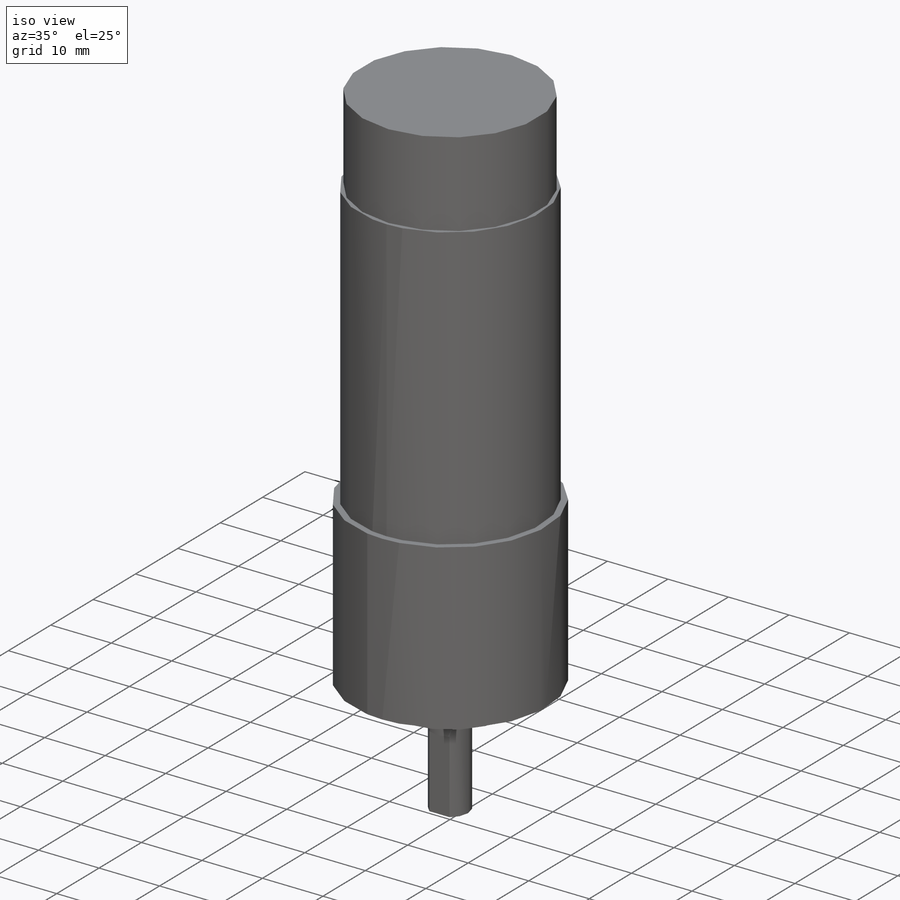
[diagram: iso view]
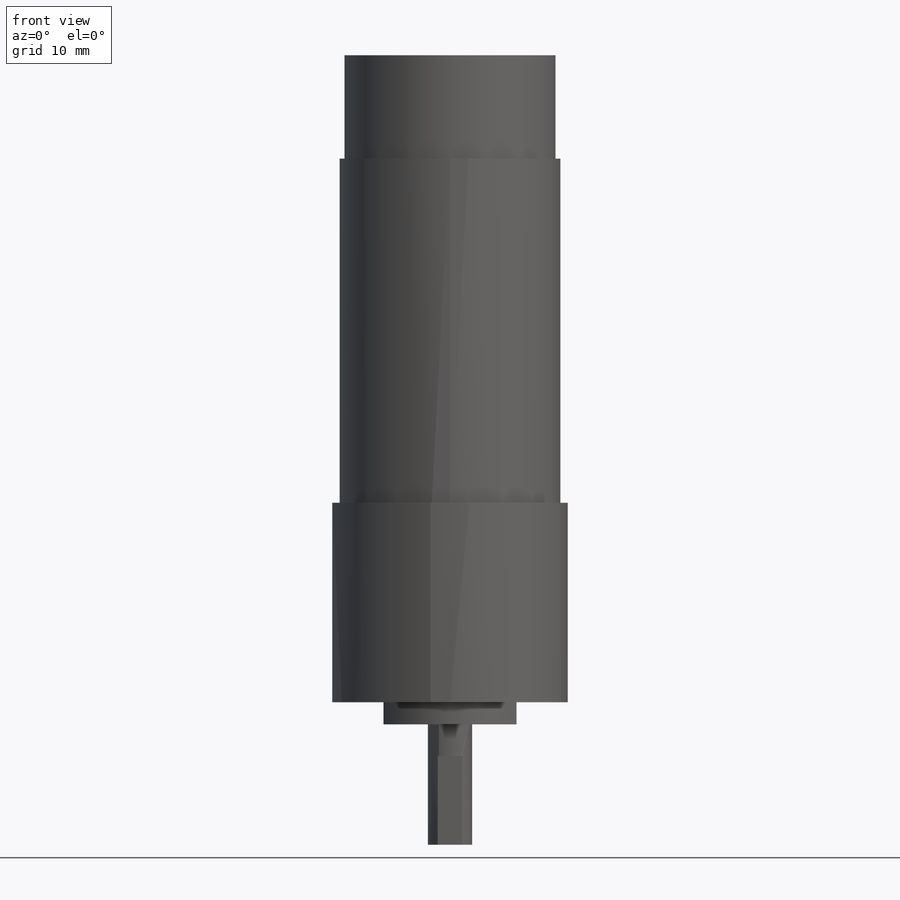
[diagram: front view]
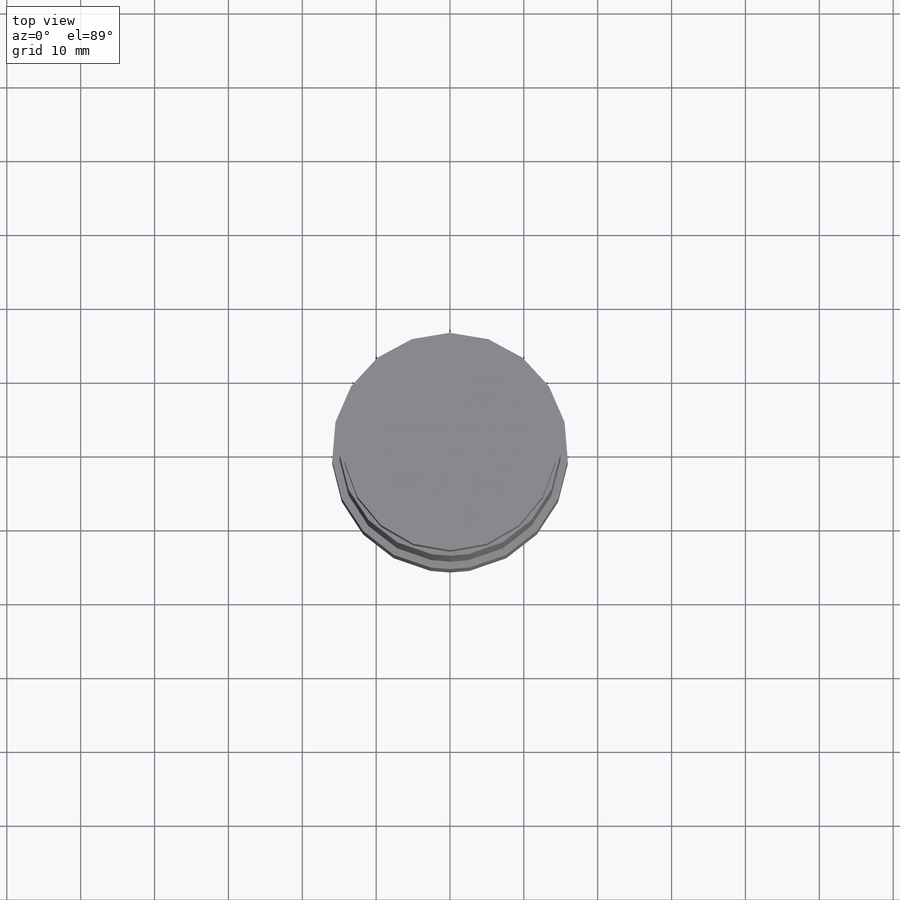
[diagram: top view]
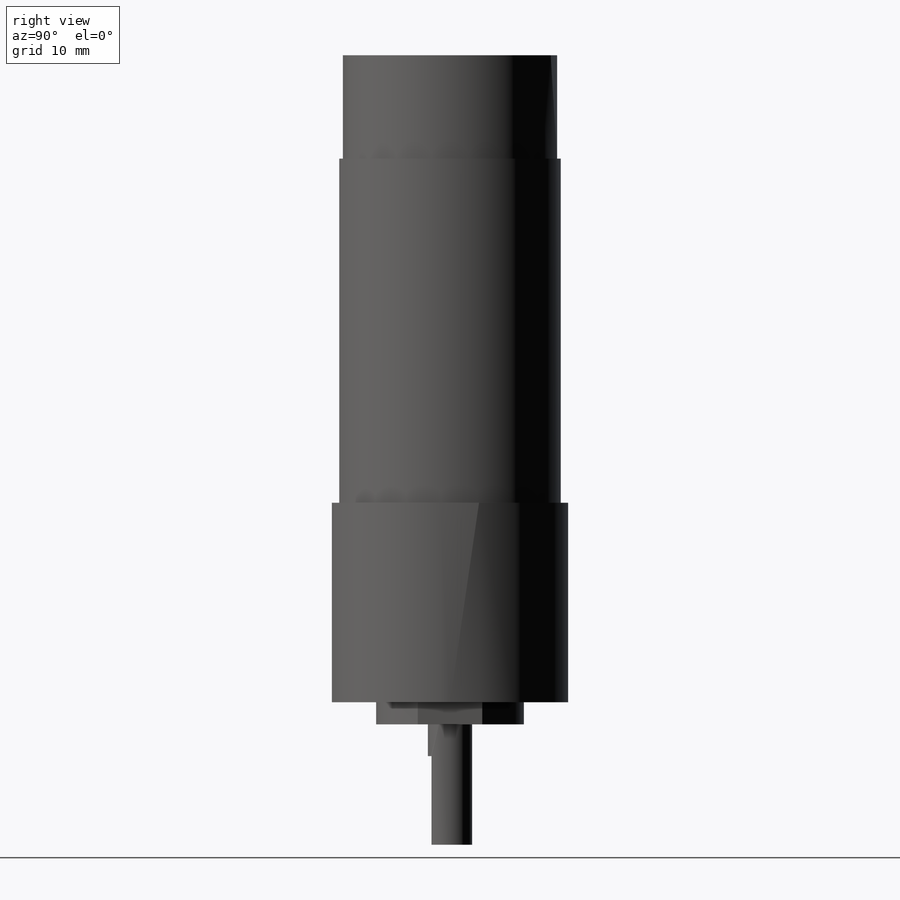
[diagram: right view]
SOLIDWORKS PART (.sldprt)
format: sldprt  version: not decoded by parser v0  size: 178,176 bytes
history: native  units: mm
features: sketch x7, extrude x5, plane x3, cut_extrude x2, material x1 (+12 scaffold rows collapsed)
feature tree (30):
  scaffold x12  (default folders/planes/origin — collapsed)
  material  "Matériau <non spécifié>"
  plane  "Plan de face"
  plane  "Plan de dessus"
  plane  "Plan de droite"
  sketch  "Esquisse1"  dims[c1.D1=21.0mm c1.D2=21.0mm c1.D3=10.0mm c1.D4=~35.102622mm c2.D1=42.0mm c2.D2=60.0mm]
  extrude  "Extrusion1"  Depth=27mm
  sketch  "Esquisse2"  dims[c1.D1=20.0mm c1.D5=10.0mm c1.D3=10.0mm c1.D2=18.0mm c2.D3=9.0mm c2.D1=9.0mm c3.D3=10.0mm c3.D4=10.0mm c3.D5=10.0mm c4.D4=~4.358899mm]
  extrude  "Extrusion2"  Depth=3mm
  sketch  "Esquisse3"  dims[D1=6.0mm]
  extrude  "Extrusion3"  Depth=16.3mm
  sketch  "Esquisse4"  dims[D1=2.5mm]
  cut_extrude  "Enlèv. mat.-Extru.1"  Depth=12mm
  sketch  "Esquisse5"  dims[D1=30.0mm]
  extrude  "Extrusion4"  Depth=46.6mm
  sketch  "Esquisse6"  dims[c1.D3=3.0mm c1.D1=32.0mm c2.D1=45.0deg c2.D2=13.0mm]
  cut_extrude  "Enlèv. mat.-Extru.2"  Depth=5.5mm
  sketch  "Esquisse7"  dims[D1=29.0mm]
  extrude  "Extrusion5"  Depth=14mm
decode coverage: 14 of 14 modeling features carry decoded parameters
note: ~ marks probable driven/reference dimensions
note: suppression state not decoded; provenance and decode notes live in map.json
